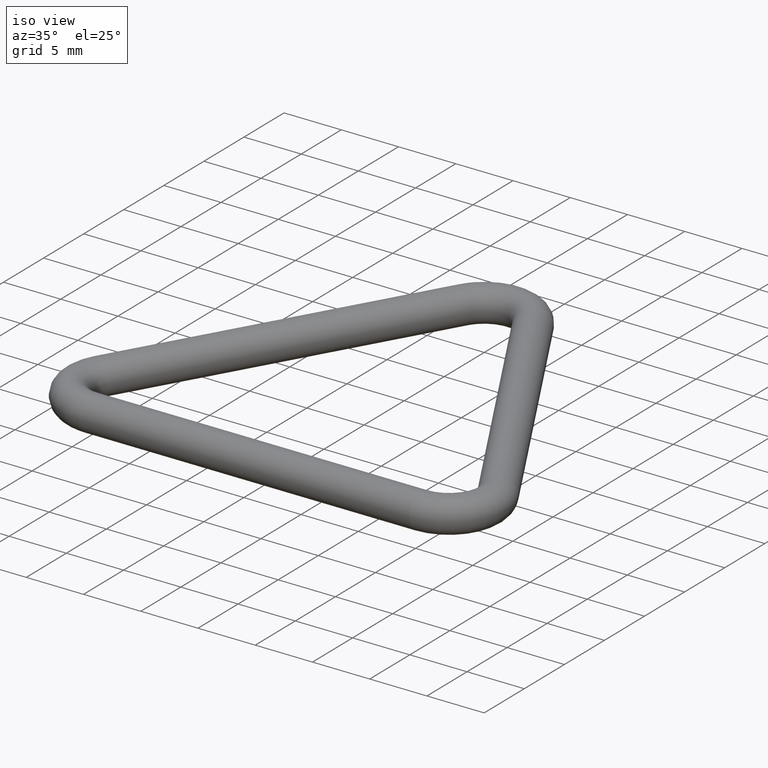
[diagram: clean part render]
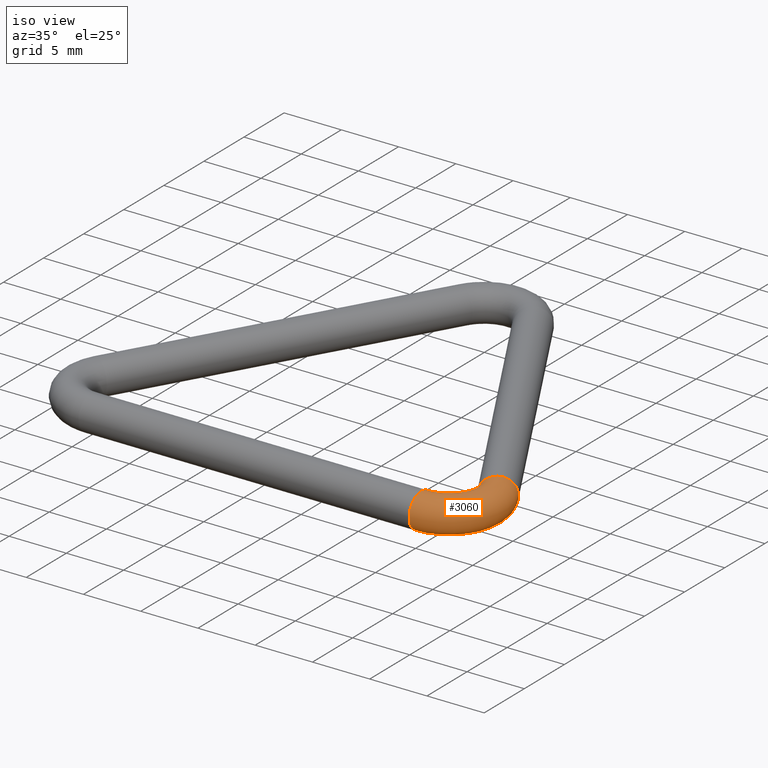
[diagram: same view with one face highlighted and labeled with its STEP entity id]
A machine part, iso view. The second image highlights one B-rep face of the part: STEP entity #3060.
In plain terms, the highlighted toroidal blend (fillet) surface has major radius 3.5 mm and minor (blend) radius 1.5 mm.
Its self-contained STEP definition (entity closure, byte-faithful):
#82 = DIRECTION ( 'NONE',  ( 0.0000000000000000000, 0.0000000000000000000, 1.000000000000000000 ) ) ;
#248 = CIRCLE ( 'NONE', #4920, 1.500000000000000200 ) ;
#393 = DIRECTION ( 'NONE',  ( 0.0000000000000000000, 0.0000000000000000000, -1.000000000000000000 ) ) ;
#528 = DIRECTION ( 'NONE',  ( 1.000000000000000000, 0.0000000000000000000, 0.0000000000000000000 ) ) ;
#935 = CARTESIAN_POINT ( 'NONE',  ( 14.43375672974055700, 1.500000000000000000, -1.500000000000000200 ) ) ;
#1420 = EDGE_CURVE ( 'NONE', #6264, #6264, #248, .T. ) ;
#2052 = DIRECTION ( 'NONE',  ( 1.000000000000000000, 0.0000000000000000000, 0.0000000000000000000 ) ) ;
#2356 = AXIS2_PLACEMENT_3D ( 'NONE', #4269, #528, #393 ) ;
#3060 = ADVANCED_FACE ( 'NONE', ( #6190, #10281 ), #10887, .T. ) ;
#4269 = CARTESIAN_POINT ( 'NONE',  ( 14.43375672974055700, 1.500000000000000000, 0.0000000000000000000 ) ) ;
#4272 = VERTEX_POINT ( 'NONE', #935 ) ;
#4552 = ORIENTED_EDGE ( 'NONE', *, *, #11414, .T. ) ;
#4920 = AXIS2_PLACEMENT_3D ( 'NONE', #9951, #11847, #4922 ) ;
#4922 = DIRECTION ( 'NONE',  ( 0.0000000000000000000, 0.0000000000000000000, -1.000000000000000000 ) ) ;
#5047 = CARTESIAN_POINT ( 'NONE',  ( 14.43375672974055800, 5.000000000000000900, 0.0000000000000000000 ) ) ;
#5368 = AXIS2_PLACEMENT_3D ( 'NONE', #5047, #82, #2052 ) ;
#6190 = FACE_OUTER_BOUND ( 'NONE', #9801, .T. ) ;
#6264 = VERTEX_POINT ( 'NONE', #7787 ) ;
#7163 = CIRCLE ( 'NONE', #2356, 1.500000000000000200 ) ;
#7787 = CARTESIAN_POINT ( 'NONE',  ( 17.46484564298610200, 6.749999999999993800, -1.500000000000000200 ) ) ;
#9151 = ORIENTED_EDGE ( 'NONE', *, *, #1420, .F. ) ;
#9801 = EDGE_LOOP ( 'NONE', ( #4552 ) ) ;
#9951 = CARTESIAN_POINT ( 'NONE',  ( 17.46484564298610200, 6.749999999999993800, 0.0000000000000000000 ) ) ;
#10281 = FACE_OUTER_BOUND ( 'NONE', #11235, .T. ) ;
#10887 = TOROIDAL_SURFACE ( 'NONE', #5368, 3.500000000000000900, 1.500000000000000200 ) ;
#11235 = EDGE_LOOP ( 'NONE', ( #9151 ) ) ;
#11414 = EDGE_CURVE ( 'NONE', #4272, #4272, #7163, .T. ) ;
#11847 = DIRECTION ( 'NONE',  ( -0.4999999999999982800, 0.8660254037844397100, 0.0000000000000000000 ) ) ;